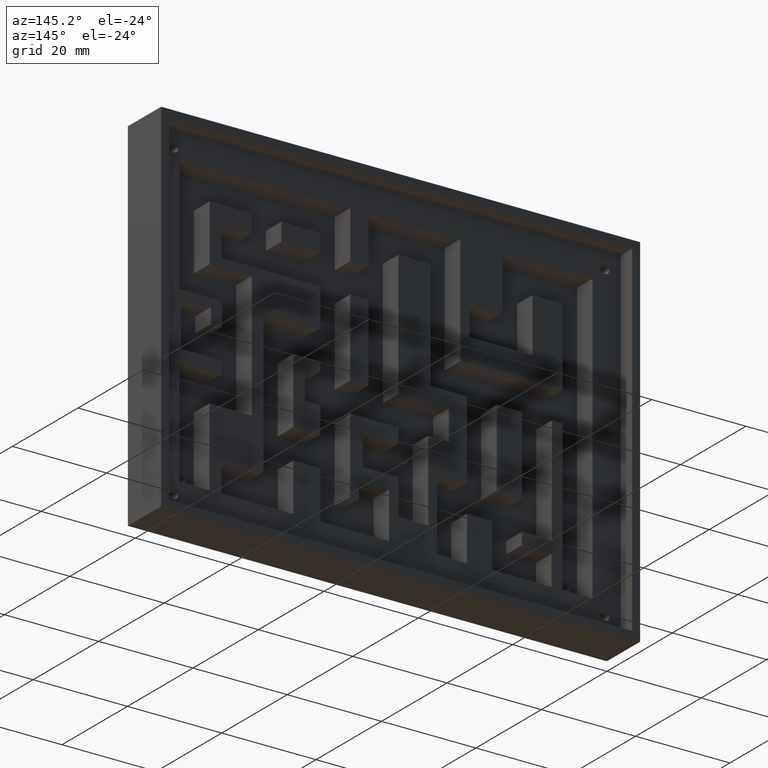
[diagram: clean part render]
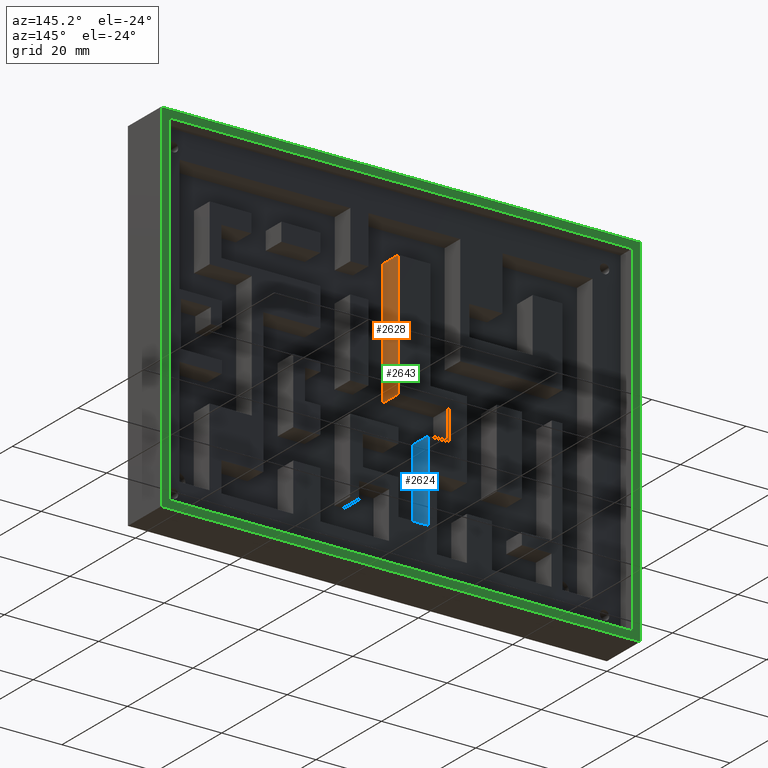
[diagram: same view with three faces highlighted in distinct colors, each labeled with its STEP entity id]
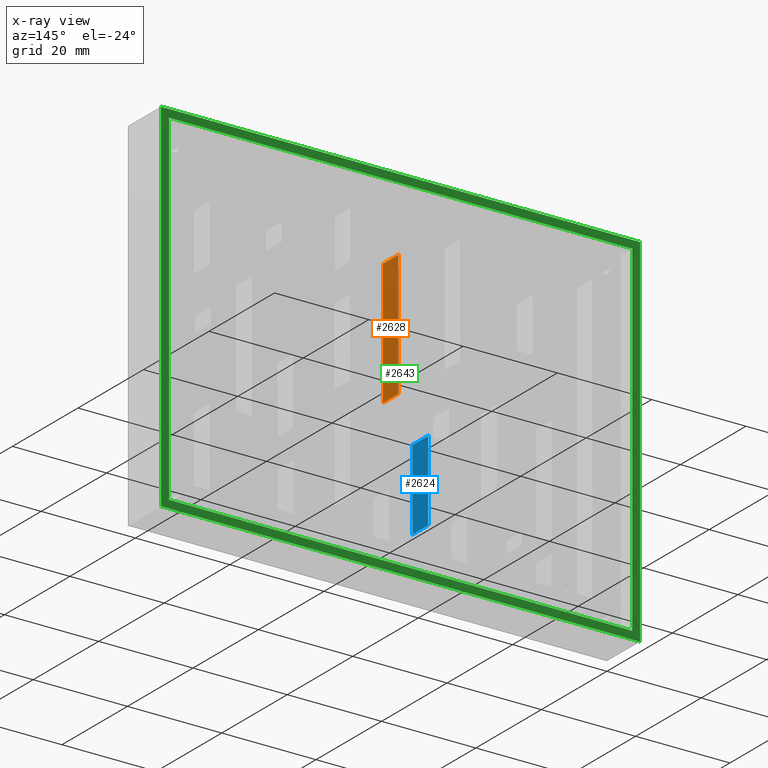
[diagram: x-ray of the same camera — body ghosted, the three highlighted faces saturated]
A machine part, auxiliary view with three faces highlighted in distinct colors.
The next image is the same camera in x-ray (body ghosted, the three faces saturated) — at least one of them is partly hidden behind the body in this view.
Their STEP definitions:

[orange] entity #2628 — the highlighted planar face has unit normal (-1, 0, 0).
#164=FACE_OUTER_BOUND('',#300,.T.);
#300=EDGE_LOOP('',(#2105,#2106,#2107,#2108));
#655=LINE('',#4145,#1009);
#657=LINE('',#4149,#1011);
#658=LINE('',#4151,#1012);
#659=LINE('',#4152,#1013);
#1009=VECTOR('',#3397,0.393700787401575);
#1011=VECTOR('',#3401,0.393700787401575);
#1012=VECTOR('',#3402,0.393700787401575);
#1013=VECTOR('',#3403,0.393700787401575);
#1263=VERTEX_POINT('',#4142);
#1264=VERTEX_POINT('',#4144);
#1265=VERTEX_POINT('',#4148);
#1266=VERTEX_POINT('',#4150);
#1619=EDGE_CURVE('',#1263,#1264,#655,.T.);
#1621=EDGE_CURVE('',#1265,#1263,#657,.T.);
#1622=EDGE_CURVE('',#1265,#1266,#658,.T.);
#1623=EDGE_CURVE('',#1266,#1264,#659,.T.);
#2105=ORIENTED_EDGE('',*,*,#1621,.F.);
#2106=ORIENTED_EDGE('',*,*,#1622,.T.);
#2107=ORIENTED_EDGE('',*,*,#1623,.T.);
#2108=ORIENTED_EDGE('',*,*,#1619,.F.);
#2492=PLANE('',#2790);
#2628=ADVANCED_FACE('',(#164),#2492,.F.);
#2790=AXIS2_PLACEMENT_3D('',#4147,#3399,#3400);
#3397=DIRECTION('',(0.,-1.,0.));
#3399=DIRECTION('center_axis',(-1.,0.,0.));
#3400=DIRECTION('ref_axis',(0.,0.,-1.));
#3401=DIRECTION('',(0.,0.,-1.));
#3402=DIRECTION('',(0.,-1.,0.));
#3403=DIRECTION('',(0.,0.,-1.));
#4142=CARTESIAN_POINT('',(1.92203965050324,0.26,-1.57752107121159));
#4144=CARTESIAN_POINT('',(1.92203965050324,0.0725,-1.57752107121159));
#4145=CARTESIAN_POINT('',(1.92203965050324,0.26,-1.57752107121159));
#4147=CARTESIAN_POINT('Origin',(1.92203965050324,0.26,-0.532568519042755));
#4148=CARTESIAN_POINT('',(1.92203965050324,0.26,-0.532568519042755));
#4149=CARTESIAN_POINT('',(1.92203965050324,0.26,-1.01628425952138));
#4150=CARTESIAN_POINT('',(1.92203965050324,0.0725,-0.532568519042755));
#4151=CARTESIAN_POINT('',(1.92203965050324,0.26,-0.532568519042755));
#4152=CARTESIAN_POINT('',(1.92203965050324,0.0725,-0.282568519042755));

[blue] entity #2624 — the highlighted planar face has unit normal (-1, 0, 0).
#160=FACE_OUTER_BOUND('',#296,.T.);
#296=EDGE_LOOP('',(#2089,#2090,#2091,#2092));
#643=LINE('',#4121,#997);
#645=LINE('',#4125,#999);
#646=LINE('',#4127,#1000);
#647=LINE('',#4128,#1001);
#997=VECTOR('',#3377,0.393700787401575);
#999=VECTOR('',#3381,0.393700787401575);
#1000=VECTOR('',#3382,0.393700787401575);
#1001=VECTOR('',#3383,0.393700787401575);
#1255=VERTEX_POINT('',#4118);
#1256=VERTEX_POINT('',#4120);
#1257=VERTEX_POINT('',#4124);
#1258=VERTEX_POINT('',#4126);
#1607=EDGE_CURVE('',#1255,#1256,#643,.T.);
#1609=EDGE_CURVE('',#1257,#1255,#645,.T.);
#1610=EDGE_CURVE('',#1257,#1258,#646,.T.);
#1611=EDGE_CURVE('',#1258,#1256,#647,.T.);
#2089=ORIENTED_EDGE('',*,*,#1609,.F.);
#2090=ORIENTED_EDGE('',*,*,#1610,.T.);
#2091=ORIENTED_EDGE('',*,*,#1611,.T.);
#2092=ORIENTED_EDGE('',*,*,#1607,.F.);
#2488=PLANE('',#2786);
#2624=ADVANCED_FACE('',(#160),#2488,.F.);
#2786=AXIS2_PLACEMENT_3D('',#4123,#3379,#3380);
#3377=DIRECTION('',(0.,-1.,0.));
#3379=DIRECTION('center_axis',(-1.,0.,0.));
#3380=DIRECTION('ref_axis',(0.,0.,-1.));
#3381=DIRECTION('',(0.,0.,-1.));
#3382=DIRECTION('',(0.,-1.,0.));
#3383=DIRECTION('',(0.,0.,-1.));
#4118=CARTESIAN_POINT('',(1.67203965050324,0.26,-2.50000007978574));
#4120=CARTESIAN_POINT('',(1.67203965050324,0.0725,-2.50000007978574));
#4121=CARTESIAN_POINT('',(1.67203965050324,0.26,-2.50000007978574));
#4123=CARTESIAN_POINT('Origin',(1.67203965050324,0.26,-1.82752107121159));
#4124=CARTESIAN_POINT('',(1.67203965050324,0.26,-1.82752107121159));
#4125=CARTESIAN_POINT('',(1.67203965050324,0.26,-1.66376053560579));
#4126=CARTESIAN_POINT('',(1.67203965050324,0.0725,-1.82752107121159));
#4127=CARTESIAN_POINT('',(1.67203965050324,0.26,-1.82752107121159));
#4128=CARTESIAN_POINT('',(1.67203965050324,0.0725,-2.20172451651316));

[green] entity #2643 — the highlighted planar face has unit normal (0, 1, 0).
#26=FACE_BOUND('',#327,.T.);
#179=FACE_OUTER_BOUND('',#326,.T.);
#326=EDGE_LOOP('',(#2367,#2368,#2369,#2370));
#327=EDGE_LOOP('',(#2371,#2372,#2373,#2374));
#329=LINE('',#3463,#683);
#333=LINE('',#3471,#687);
#336=LINE('',#3477,#690);
#339=LINE('',#3482,#693);
#673=LINE('',#4187,#1027);
#676=LINE('',#4193,#1030);
#679=LINE('',#4199,#1033);
#682=LINE('',#4203,#1036);
#683=VECTOR('',#2811,0.393700787401575);
#687=VECTOR('',#2817,0.393700787401575);
#690=VECTOR('',#2822,0.393700787401575);
#693=VECTOR('',#2827,0.393700787401575);
#1027=VECTOR('',#3439,0.393700787401575);
#1030=VECTOR('',#3444,0.393700787401575);
#1033=VECTOR('',#3449,0.393700787401575);
#1036=VECTOR('',#3454,0.393700787401575);
#1037=VERTEX_POINT('',#3461);
#1038=VERTEX_POINT('',#3462);
#1041=VERTEX_POINT('',#3470);
#1043=VERTEX_POINT('',#3476);
#1275=VERTEX_POINT('',#4184);
#1276=VERTEX_POINT('',#4186);
#1278=VERTEX_POINT('',#4192);
#1280=VERTEX_POINT('',#4198);
#1281=EDGE_CURVE('',#1037,#1038,#329,.T.);
#1285=EDGE_CURVE('',#1041,#1037,#333,.T.);
#1288=EDGE_CURVE('',#1043,#1041,#336,.T.);
#1291=EDGE_CURVE('',#1038,#1043,#339,.T.);
#1637=EDGE_CURVE('',#1276,#1275,#673,.T.);
#1640=EDGE_CURVE('',#1278,#1276,#676,.T.);
#1643=EDGE_CURVE('',#1280,#1278,#679,.T.);
#1646=EDGE_CURVE('',#1275,#1280,#682,.T.);
#2367=ORIENTED_EDGE('',*,*,#1646,.T.);
#2368=ORIENTED_EDGE('',*,*,#1643,.T.);
#2369=ORIENTED_EDGE('',*,*,#1640,.T.);
#2370=ORIENTED_EDGE('',*,*,#1637,.T.);
#2371=ORIENTED_EDGE('',*,*,#1281,.T.);
#2372=ORIENTED_EDGE('',*,*,#1291,.T.);
#2373=ORIENTED_EDGE('',*,*,#1288,.T.);
#2374=ORIENTED_EDGE('',*,*,#1285,.T.);
#2507=PLANE('',#2805);
#2643=ADVANCED_FACE('',(#179,#26),#2507,.T.);
#2805=AXIS2_PLACEMENT_3D('',#4204,#3455,#3456);
#2811=DIRECTION('',(0.,0.,-1.));
#2817=DIRECTION('',(-1.,0.,0.));
#2822=DIRECTION('',(0.,0.,1.));
#2827=DIRECTION('',(1.,0.,0.));
#3439=DIRECTION('',(-1.,0.,0.));
#3444=DIRECTION('',(0.,0.,-1.));
#3449=DIRECTION('',(1.,0.,0.));
#3454=DIRECTION('',(0.,0.,1.));
#3455=DIRECTION('center_axis',(0.,1.,0.));
#3456=DIRECTION('ref_axis',(0.,0.,1.));
#3461=CARTESIAN_POINT('',(0.0659391311440645,0.4,-0.0659391311440645));
#3462=CARTESIAN_POINT('',(0.0659391311440645,0.4,-2.93406086885593));
#3463=CARTESIAN_POINT('',(0.0659391311440645,0.4,-0.782969565572032));
#3470=CARTESIAN_POINT('',(3.93406086885594,0.4,-0.0659391311440645));
#3471=CARTESIAN_POINT('',(2.96703043442797,0.4,-0.0659391311440645));
#3476=CARTESIAN_POINT('',(3.93406086885594,0.4,-2.93406086885593));
#3477=CARTESIAN_POINT('',(3.93406086885594,0.4,-2.21703043442797));
#3482=CARTESIAN_POINT('',(1.03296956557203,0.4,-2.93406086885593));
#4184=CARTESIAN_POINT('',(0.,0.4,-3.));
#4186=CARTESIAN_POINT('',(4.,0.4,-3.));
#4187=CARTESIAN_POINT('',(4.,0.4,-3.));
#4192=CARTESIAN_POINT('',(4.,0.4,0.));
#4193=CARTESIAN_POINT('',(4.,0.4,0.));
#4198=CARTESIAN_POINT('',(0.,0.4,0.));
#4199=CARTESIAN_POINT('',(0.,0.4,0.));
#4203=CARTESIAN_POINT('',(0.,0.4,-3.));
#4204=CARTESIAN_POINT('Origin',(2.,0.4,-1.5));